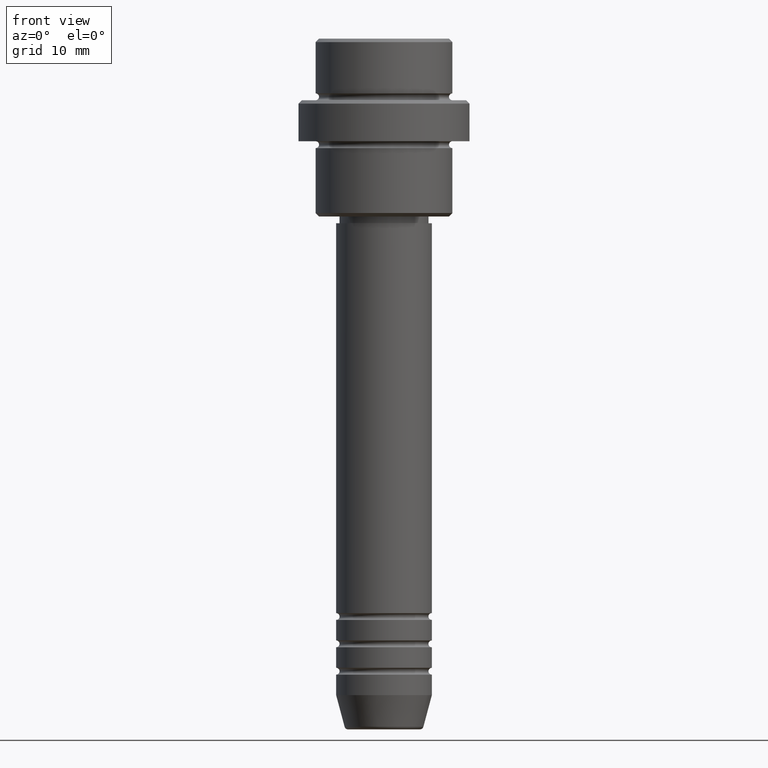
[diagram: clean part render]
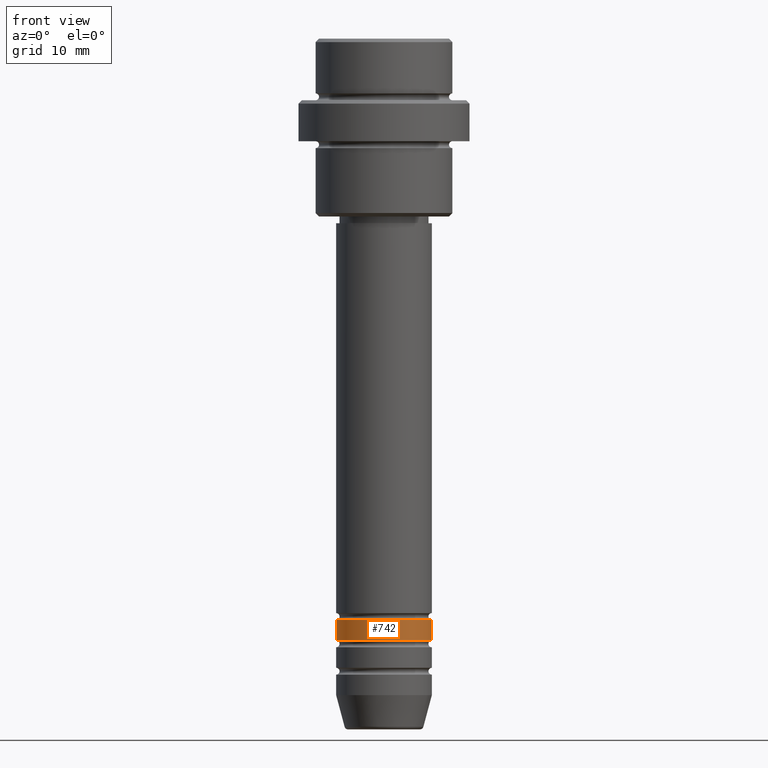
[diagram: same view with one face highlighted and labeled with its STEP entity id]
A machine part, front view. The second image highlights one B-rep face of the part: STEP entity #742.
In plain terms, the highlighted cylindrical surface (partial cylindrical patch) has radius 7 mm, axis along (-0, -0, 1).
Its self-contained STEP definition (entity closure, byte-faithful):
#77 = VECTOR ( 'NONE', #361, 1000.000000000000000 ) ;
#105 = CYLINDRICAL_SURFACE ( 'NONE', #463, 7.000000000000000000 ) ;
#142 = CARTESIAN_POINT ( 'NONE',  ( -7.000000000000000000, 8.572527594031473190E-16, -87.99999999999988631 ) ) ;
#150 = CARTESIAN_POINT ( 'NONE',  ( 7.000000000000000000, 0.000000000000000000, 0.000000000000000000 ) ) ;
#230 = VECTOR ( 'NONE', #599, 1000.000000000000000 ) ;
#249 = ORIENTED_EDGE ( 'NONE', *, *, #564, .F. ) ;
#330 = AXIS2_PLACEMENT_3D ( 'NONE', #964, #607, #1375 ) ;
#361 = DIRECTION ( 'NONE',  ( -0.000000000000000000, -0.000000000000000000, 1.000000000000000000 ) ) ;
#379 = VERTEX_POINT ( 'NONE', #446 ) ;
#409 = EDGE_LOOP ( 'NONE', ( #249, #1120, #455, #1195 ) ) ;
#446 = CARTESIAN_POINT ( 'NONE',  ( 7.000000000000000000, 0.000000000000000000, -87.99999999999988631 ) ) ;
#455 = ORIENTED_EDGE ( 'NONE', *, *, #924, .T. ) ;
#463 = AXIS2_PLACEMENT_3D ( 'NONE', #530, #540, #656 ) ;
#471 = VERTEX_POINT ( 'NONE', #142 ) ;
#473 = VERTEX_POINT ( 'NONE', #679 ) ;
#498 = LINE ( 'NONE', #854, #230 ) ;
#530 = CARTESIAN_POINT ( 'NONE',  ( 0.000000000000000000, 0.000000000000000000, 0.000000000000000000 ) ) ;
#540 = DIRECTION ( 'NONE',  ( -0.000000000000000000, -0.000000000000000000, 1.000000000000000000 ) ) ;
#564 = EDGE_CURVE ( 'NONE', #471, #473, #498, .T. ) ;
#589 = DIRECTION ( 'NONE',  ( -0.000000000000000000, -0.000000000000000000, 1.000000000000000000 ) ) ;
#599 = DIRECTION ( 'NONE',  ( -0.000000000000000000, -0.000000000000000000, 1.000000000000000000 ) ) ;
#607 = DIRECTION ( 'NONE',  ( -0.000000000000000000, -0.000000000000000000, 1.000000000000000000 ) ) ;
#656 = DIRECTION ( 'NONE',  ( 1.000000000000000000, 0.000000000000000000, 0.000000000000000000 ) ) ;
#668 = EDGE_CURVE ( 'NONE', #473, #903, #957, .T. ) ;
#679 = CARTESIAN_POINT ( 'NONE',  ( -7.000000000000000000, 8.572527594031473190E-16, -84.99999999999988631 ) ) ;
#742 = ADVANCED_FACE ( 'NONE', ( #1302 ), #105, .T. ) ;
#854 = CARTESIAN_POINT ( 'NONE',  ( -7.000000000000000000, 8.572527594031473190E-16, 0.000000000000000000 ) ) ;
#902 = EDGE_CURVE ( 'NONE', #471, #379, #1162, .T. ) ;
#903 = VERTEX_POINT ( 'NONE', #1357 ) ;
#924 = EDGE_CURVE ( 'NONE', #379, #903, #1340, .T. ) ;
#957 = CIRCLE ( 'NONE', #330, 7.000000000000000000 ) ;
#964 = CARTESIAN_POINT ( 'NONE',  ( 0.000000000000000000, 0.000000000000000000, -84.99999999999988631 ) ) ;
#1090 = AXIS2_PLACEMENT_3D ( 'NONE', #1113, #589, #1130 ) ;
#1113 = CARTESIAN_POINT ( 'NONE',  ( 0.000000000000000000, 0.000000000000000000, -87.99999999999988631 ) ) ;
#1120 = ORIENTED_EDGE ( 'NONE', *, *, #902, .T. ) ;
#1130 = DIRECTION ( 'NONE',  ( 1.000000000000000000, 0.000000000000000000, 0.000000000000000000 ) ) ;
#1162 = CIRCLE ( 'NONE', #1090, 7.000000000000000000 ) ;
#1195 = ORIENTED_EDGE ( 'NONE', *, *, #668, .F. ) ;
#1302 = FACE_OUTER_BOUND ( 'NONE', #409, .T. ) ;
#1340 = LINE ( 'NONE', #150, #77 ) ;
#1357 = CARTESIAN_POINT ( 'NONE',  ( 7.000000000000000000, 0.000000000000000000, -84.99999999999988631 ) ) ;
#1375 = DIRECTION ( 'NONE',  ( 1.000000000000000000, 0.000000000000000000, 0.000000000000000000 ) ) ;